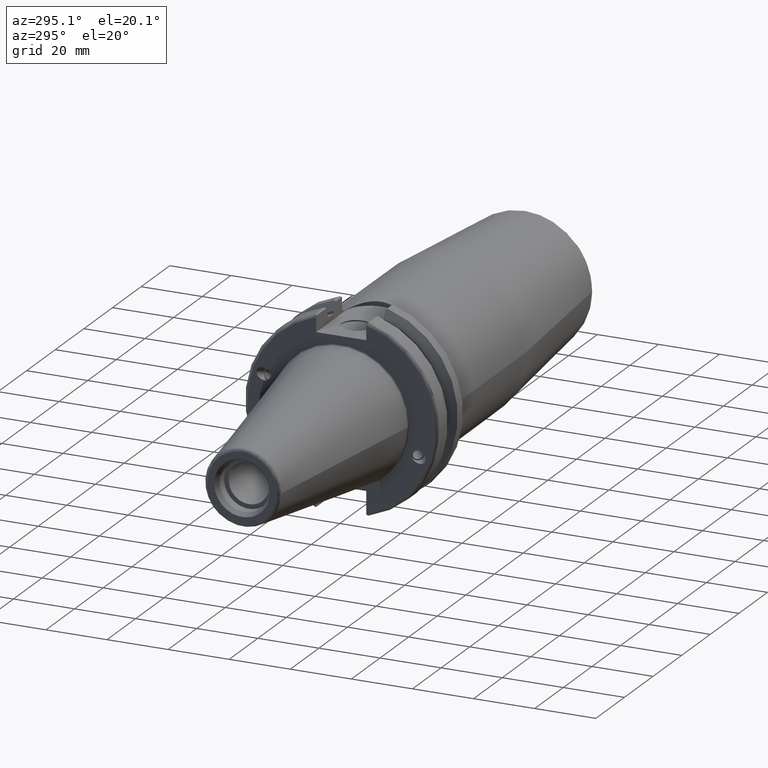
[diagram: clean part render]
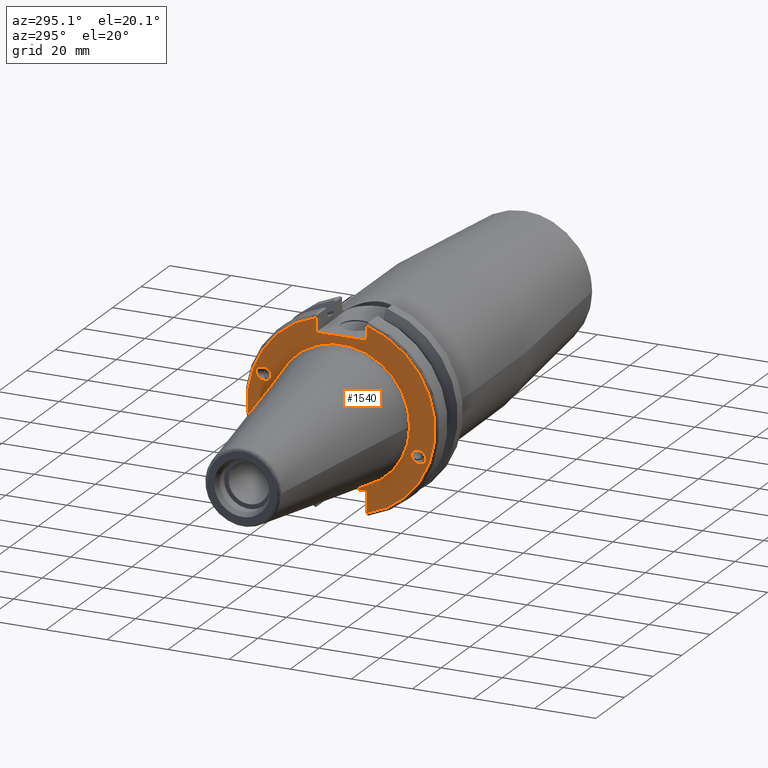
[diagram: same view with one face highlighted and labeled with its STEP entity id]
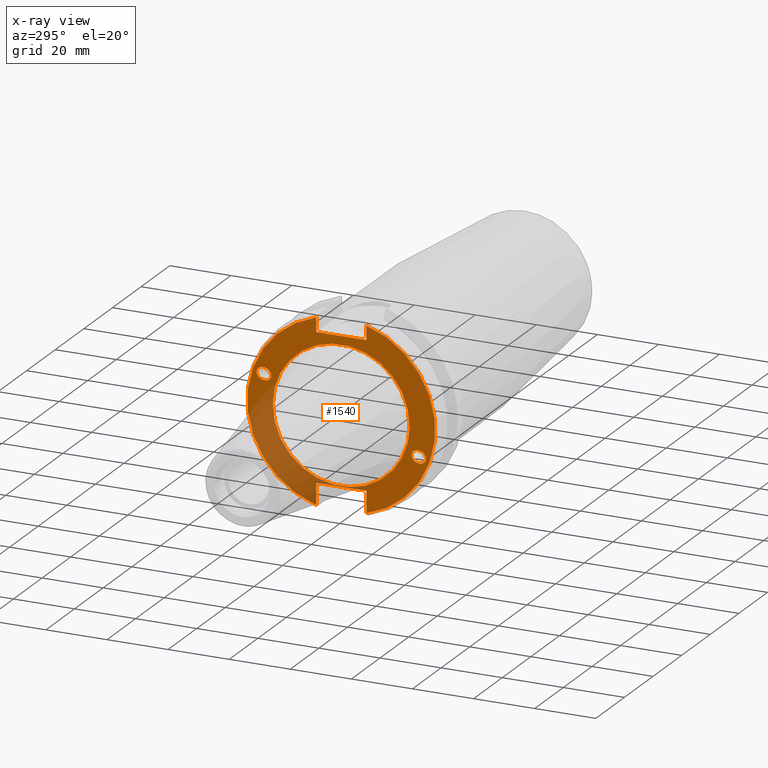
[diagram: x-ray of the same camera — body ghosted, the highlighted face saturated]
A machine part, auxiliary view. The second image highlights one B-rep face of the part: STEP entity #1540.
The next image is the same camera in x-ray: the body ghosted, the highlighted face saturated — about 26% of this face is hidden behind the body in this view.
In plain terms, the highlighted planar face has unit normal (-1, 0, 0).
Its self-contained STEP definition (entity closure, byte-faithful):
#42=FACE_BOUND('',#273,.T.);
#43=FACE_BOUND('',#274,.T.);
#44=FACE_BOUND('',#275,.T.);
#61=PLANE('',#1723);
#92=ELLIPSE('',#1674,2.4415491775229,1.99999999999999);
#101=ELLIPSE('',#1718,2.4415491775229,1.99999999999999);
#173=FACE_OUTER_BOUND('',#272,.T.);
#272=EDGE_LOOP('',(#1238,#1239,#1240,#1241,#1242,#1243,#1244,#1245));
#273=EDGE_LOOP('',(#1246));
#274=EDGE_LOOP('',(#1247));
#275=EDGE_LOOP('',(#1248));
#367=CIRCLE('',#1720,22.3960257175388);
#370=CIRCLE('',#1724,30.75);
#371=CIRCLE('',#1725,30.75);
#439=LINE('',#2853,#522);
#440=LINE('',#2857,#523);
#441=LINE('',#2859,#524);
#442=LINE('',#2861,#525);
#443=LINE('',#2865,#526);
#444=LINE('',#2866,#527);
#522=VECTOR('',#2076,10.);
#523=VECTOR('',#2079,10.);
#524=VECTOR('',#2080,10.);
#525=VECTOR('',#2081,10.);
#526=VECTOR('',#2084,10.);
#527=VECTOR('',#2085,10.);
#664=VERTEX_POINT('',#2638);
#705=VERTEX_POINT('',#2841);
#706=VERTEX_POINT('',#2845);
#708=VERTEX_POINT('',#2851);
#709=VERTEX_POINT('',#2852);
#710=VERTEX_POINT('',#2854);
#711=VERTEX_POINT('',#2856);
#712=VERTEX_POINT('',#2858);
#713=VERTEX_POINT('',#2860);
#714=VERTEX_POINT('',#2862);
#715=VERTEX_POINT('',#2864);
#844=EDGE_CURVE('',#664,#664,#92,.T.);
#901=EDGE_CURVE('',#705,#705,#101,.T.);
#902=EDGE_CURVE('',#706,#706,#367,.T.);
#905=EDGE_CURVE('',#708,#709,#439,.T.);
#906=EDGE_CURVE('',#710,#709,#370,.T.);
#907=EDGE_CURVE('',#710,#711,#440,.T.);
#908=EDGE_CURVE('',#711,#712,#441,.T.);
#909=EDGE_CURVE('',#712,#713,#442,.T.);
#910=EDGE_CURVE('',#714,#713,#371,.T.);
#911=EDGE_CURVE('',#714,#715,#443,.T.);
#912=EDGE_CURVE('',#715,#708,#444,.T.);
#1238=ORIENTED_EDGE('',*,*,#905,.T.);
#1239=ORIENTED_EDGE('',*,*,#906,.F.);
#1240=ORIENTED_EDGE('',*,*,#907,.T.);
#1241=ORIENTED_EDGE('',*,*,#908,.T.);
#1242=ORIENTED_EDGE('',*,*,#909,.T.);
#1243=ORIENTED_EDGE('',*,*,#910,.F.);
#1244=ORIENTED_EDGE('',*,*,#911,.T.);
#1245=ORIENTED_EDGE('',*,*,#912,.T.);
#1246=ORIENTED_EDGE('',*,*,#844,.T.);
#1247=ORIENTED_EDGE('',*,*,#901,.T.);
#1248=ORIENTED_EDGE('',*,*,#902,.F.);
#1540=ADVANCED_FACE('',(#173,#42,#43,#44),#61,.T.);
#1674=AXIS2_PLACEMENT_3D('',#2640,#1960,#1961);
#1718=AXIS2_PLACEMENT_3D('',#2843,#2064,#2065);
#1720=AXIS2_PLACEMENT_3D('',#2846,#2068,#2069);
#1723=AXIS2_PLACEMENT_3D('',#2850,#2074,#2075);
#1724=AXIS2_PLACEMENT_3D('',#2855,#2077,#2078);
#1725=AXIS2_PLACEMENT_3D('',#2863,#2082,#2083);
#1960=DIRECTION('center_axis',(1.,0.,0.));
#1961=DIRECTION('ref_axis',(0.,-0.939692620785908,-0.342020143325669));
#2064=DIRECTION('center_axis',(1.,0.,0.));
#2065=DIRECTION('ref_axis',(0.,0.939692620785908,0.342020143325669));
#2068=DIRECTION('center_axis',(-1.,0.,0.));
#2069=DIRECTION('ref_axis',(0.,1.,-1.83190169812394E-16));
#2074=DIRECTION('center_axis',(-1.,0.,0.));
#2075=DIRECTION('ref_axis',(0.,0.,1.));
#2076=DIRECTION('',(0.,0.,1.));
#2077=DIRECTION('center_axis',(1.,0.,0.));
#2078=DIRECTION('ref_axis',(0.,1.,1.60812264967664E-16));
#2079=DIRECTION('',(0.,0.,1.));
#2080=DIRECTION('',(0.,-1.,0.));
#2081=DIRECTION('',(0.,0.,-1.));
#2082=DIRECTION('center_axis',(1.,0.,0.));
#2083=DIRECTION('ref_axis',(0.,-1.,1.60812264967664E-16));
#2084=DIRECTION('',(0.,0.,-1.));
#2085=DIRECTION('',(0.,1.,0.));
#2638=CARTESIAN_POINT('',(0.999999999999999,-23.0773950158154,-8.39948487016));
#2640=CARTESIAN_POINT('Origin',(0.999999999999999,-25.3717007612195,-9.23454386979305));
#2841=CARTESIAN_POINT('',(0.999999999999999,23.0773950158154,8.39948487016001));
#2843=CARTESIAN_POINT('Origin',(0.999999999999999,25.3717007612195,9.23454386979306));
#2845=CARTESIAN_POINT('',(0.999999999999999,-22.3960257175388,6.84545387517925E-15));
#2846=CARTESIAN_POINT('Origin',(0.999999999999999,0.,0.));
#2850=CARTESIAN_POINT('Origin',(0.999999999999999,31.75,0.));
#2851=CARTESIAN_POINT('',(0.999999999999996,8.18999999999999,25.));
#2852=CARTESIAN_POINT('',(0.999999999999999,8.19,29.6392712461019));
#2853=CARTESIAN_POINT('',(0.999999999999999,8.19,12.5));
#2854=CARTESIAN_POINT('',(0.999999999999999,8.18999999999999,-29.6392712461019));
#2855=CARTESIAN_POINT('Origin',(0.999999999999999,0.,0.));
#2856=CARTESIAN_POINT('',(1.,8.19000000000001,-22.6));
#2857=CARTESIAN_POINT('',(0.999999999999999,8.19000000000001,-11.3));
#2858=CARTESIAN_POINT('',(0.999999999999997,-8.19,-22.6));
#2859=CARTESIAN_POINT('',(0.999999999999999,15.875,-22.6));
#2860=CARTESIAN_POINT('',(0.999999999999999,-8.19,-29.6392712461019));
#2861=CARTESIAN_POINT('',(0.999999999999999,-8.19,-11.3));
#2862=CARTESIAN_POINT('',(0.999999999999999,-8.18999999999999,29.6392712461019));
#2863=CARTESIAN_POINT('Origin',(0.999999999999999,0.,0.));
#2864=CARTESIAN_POINT('',(1.,-8.19000000000001,25.));
#2865=CARTESIAN_POINT('',(0.999999999999999,-8.19000000000001,12.5));
#2866=CARTESIAN_POINT('',(0.999999999999999,15.875,25.));